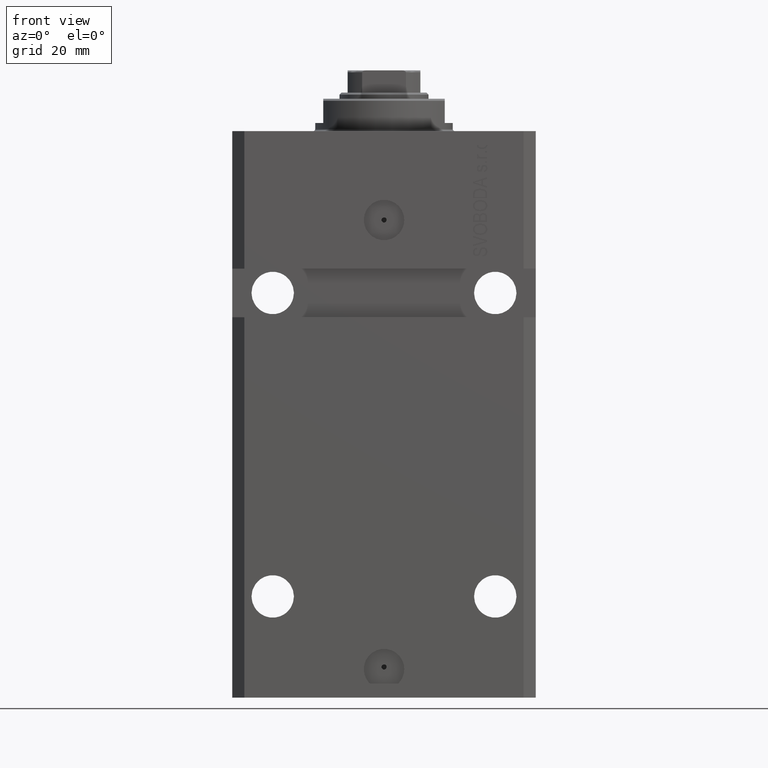
[diagram: clean part render]
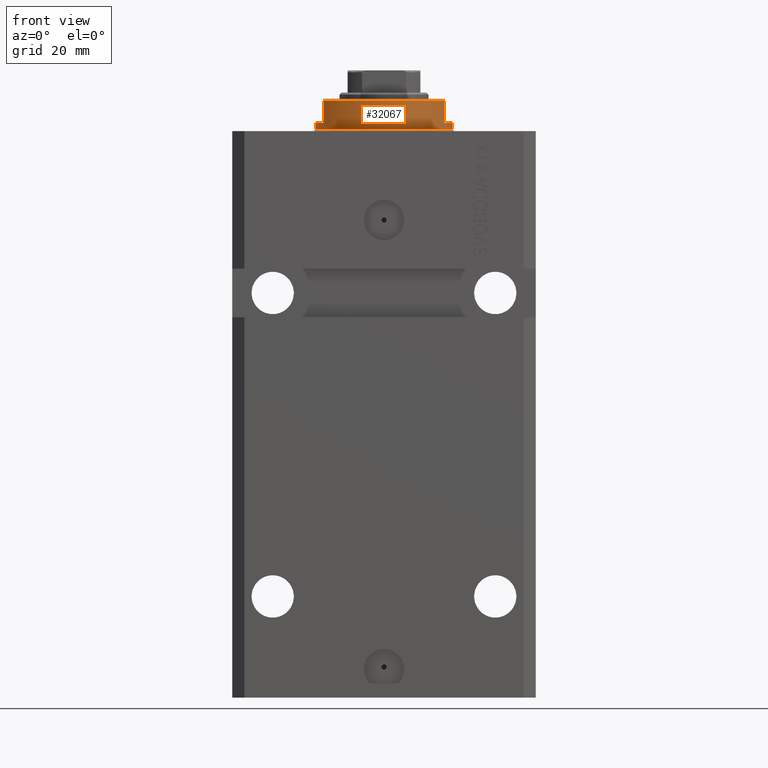
[diagram: same view with one face highlighted and labeled with its STEP entity id]
A machine part, front view. The second image highlights one B-rep face of the part: STEP entity #32067.
In plain terms, the highlighted cylindrical surface (partial cylindrical patch) has radius 17 mm, axis along (0, 0, -1).
Its self-contained STEP definition (entity closure, byte-faithful):
#643 = LINE ( 'NONE', #37655, #19995 ) ;
#671 = DIRECTION ( 'NONE',  ( -1.000000000000000000, 0.000000000000000000, 0.000000000000000000 ) ) ;
#889 = CARTESIAN_POINT ( 'NONE',  ( 0.000000000000000000, 0.000000000000000000, -2.000000000000000000 ) ) ;
#936 = ORIENTED_EDGE ( 'NONE', *, *, #35705, .T. ) ;
#1747 = DIRECTION ( 'NONE',  ( -0.000000000000000000, -0.000000000000000000, 1.000000000000000000 ) ) ;
#2132 = VERTEX_POINT ( 'NONE', #28799 ) ;
#2996 = ORIENTED_EDGE ( 'NONE', *, *, #38268, .T. ) ;
#4745 = CARTESIAN_POINT ( 'NONE',  ( 0.000000000000000000, 0.000000000000000000, -7.500000000000007105 ) ) ;
#5799 = VERTEX_POINT ( 'NONE', #41035 ) ;
#6523 = VECTOR ( 'NONE', #1747, 1000.000000000000000 ) ;
#6725 = DIRECTION ( 'NONE',  ( 0.000000000000000000, 0.000000000000000000, -1.000000000000000000 ) ) ;
#7462 = DIRECTION ( 'NONE',  ( -1.000000000000000000, 0.000000000000000000, 0.000000000000000000 ) ) ;
#7704 = VERTEX_POINT ( 'NONE', #42048 ) ;
#8300 = DIRECTION ( 'NONE',  ( 0.000000000000000000, 0.000000000000000000, -1.000000000000000000 ) ) ;
#8946 = CARTESIAN_POINT ( 'NONE',  ( -17.00000000000000000, 2.081899558550500280E-15, -8.000000000000000000 ) ) ;
#10667 = VERTEX_POINT ( 'NONE', #11235 ) ;
#10848 = CIRCLE ( 'NONE', #18772, 17.00000000000000000 ) ;
#11235 = CARTESIAN_POINT ( 'NONE',  ( 17.00000000000000000, 0.000000000000000000, -2.000000000000000000 ) ) ;
#11745 = DIRECTION ( 'NONE',  ( -1.000000000000000000, 0.000000000000000000, 0.000000000000000000 ) ) ;
#14027 = CARTESIAN_POINT ( 'NONE',  ( 17.00000000000000000, 0.000000000000000000, -0.5000000000000004441 ) ) ;
#14372 = CARTESIAN_POINT ( 'NONE',  ( 17.00000000000000000, 0.000000000000000000, -8.000000000000000000 ) ) ;
#15062 = EDGE_CURVE ( 'NONE', #31395, #2132, #32877, .T. ) ;
#15224 = CARTESIAN_POINT ( 'NONE',  ( -17.00000000000000000, 2.081899558550500280E-15, -2.000000000000000000 ) ) ;
#15792 = EDGE_CURVE ( 'NONE', #7704, #31395, #20939, .T. ) ;
#16012 = AXIS2_PLACEMENT_3D ( 'NONE', #19633, #33855, #43338 ) ;
#16408 = VECTOR ( 'NONE', #37998, 1000.000000000000000 ) ;
#17526 = LINE ( 'NONE', #14372, #26630 ) ;
#18772 = AXIS2_PLACEMENT_3D ( 'NONE', #4745, #21900, #7462 ) ;
#19633 = CARTESIAN_POINT ( 'NONE',  ( 0.000000000000000000, 0.000000000000000000, -0.5000000000000004441 ) ) ;
#19995 = VECTOR ( 'NONE', #6725, 1000.000000000000000 ) ;
#20939 = CIRCLE ( 'NONE', #27417, 17.00000000000000000 ) ;
#21900 = DIRECTION ( 'NONE',  ( 0.000000000000000000, 0.000000000000000000, 1.000000000000000000 ) ) ;
#24072 = EDGE_CURVE ( 'NONE', #5799, #26640, #42044, .T. ) ;
#24505 = DIRECTION ( 'NONE',  ( -0.000000000000000000, -0.000000000000000000, 1.000000000000000000 ) ) ;
#26090 = CIRCLE ( 'NONE', #16012, 17.00000000000000000 ) ;
#26201 = ORIENTED_EDGE ( 'NONE', *, *, #15062, .F. ) ;
#26630 = VECTOR ( 'NONE', #24505, 1000.000000000000000 ) ;
#26640 = VERTEX_POINT ( 'NONE', #29309 ) ;
#27417 = AXIS2_PLACEMENT_3D ( 'NONE', #42429, #35661, #11745 ) ;
#27590 = AXIS2_PLACEMENT_3D ( 'NONE', #889, #8300, #671 ) ;
#27594 = EDGE_CURVE ( 'NONE', #7704, #28040, #643, .T. ) ;
#28040 = VERTEX_POINT ( 'NONE', #39151 ) ;
#28533 = EDGE_LOOP ( 'NONE', ( #26201, #38640, #36092, #936, #36097, #31925, #33364, #2996 ) ) ;
#28799 = CARTESIAN_POINT ( 'NONE',  ( -17.00000000000000000, 2.081899558550500280E-15, -0.5000000000000004441 ) ) ;
#29309 = CARTESIAN_POINT ( 'NONE',  ( 15.00000000000000000, -8.000000000000001776, -7.500000000000007105 ) ) ;
#30170 = DIRECTION ( 'NONE',  ( -0.000000000000000000, -0.000000000000000000, 1.000000000000000000 ) ) ;
#30600 = CARTESIAN_POINT ( 'NONE',  ( 0.000000000000000000, 0.000000000000000000, -8.000000000000000000 ) ) ;
#31395 = VERTEX_POINT ( 'NONE', #15224 ) ;
#31925 = ORIENTED_EDGE ( 'NONE', *, *, #43690, .F. ) ;
#32067 = ADVANCED_FACE ( 'NONE', ( #37162 ), #44380, .T. ) ;
#32269 = EDGE_CURVE ( 'NONE', #10667, #34805, #17526, .T. ) ;
#32877 = LINE ( 'NONE', #8946, #6523 ) ;
#33364 = ORIENTED_EDGE ( 'NONE', *, *, #32269, .T. ) ;
#33855 = DIRECTION ( 'NONE',  ( -0.000000000000000000, -0.000000000000000000, -1.000000000000000000 ) ) ;
#34805 = VERTEX_POINT ( 'NONE', #14027 ) ;
#35661 = DIRECTION ( 'NONE',  ( 0.000000000000000000, 0.000000000000000000, -1.000000000000000000 ) ) ;
#35705 = EDGE_CURVE ( 'NONE', #28040, #26640, #10848, .T. ) ;
#36092 = ORIENTED_EDGE ( 'NONE', *, *, #27594, .T. ) ;
#36097 = ORIENTED_EDGE ( 'NONE', *, *, #24072, .F. ) ;
#36953 = DIRECTION ( 'NONE',  ( 1.000000000000000000, 0.000000000000000000, 0.000000000000000000 ) ) ;
#37162 = FACE_OUTER_BOUND ( 'NONE', #28533, .T. ) ;
#37655 = CARTESIAN_POINT ( 'NONE',  ( -15.00000000000000000, -8.000000000000001776, -8.000000000000000000 ) ) ;
#37998 = DIRECTION ( 'NONE',  ( 0.000000000000000000, 0.000000000000000000, -1.000000000000000000 ) ) ;
#38268 = EDGE_CURVE ( 'NONE', #34805, #2132, #26090, .T. ) ;
#38640 = ORIENTED_EDGE ( 'NONE', *, *, #15792, .F. ) ;
#38834 = AXIS2_PLACEMENT_3D ( 'NONE', #30600, #30170, #36953 ) ;
#39088 = CIRCLE ( 'NONE', #27590, 17.00000000000000000 ) ;
#39151 = CARTESIAN_POINT ( 'NONE',  ( -15.00000000000000000, -8.000000000000001776, -7.500000000000007105 ) ) ;
#41035 = CARTESIAN_POINT ( 'NONE',  ( 14.99999999999999645, -8.000000000000003553, -2.000000000000000000 ) ) ;
#41373 = CARTESIAN_POINT ( 'NONE',  ( 15.00000000000000000, -8.000000000000001776, -8.000000000000000000 ) ) ;
#42044 = LINE ( 'NONE', #41373, #16408 ) ;
#42048 = CARTESIAN_POINT ( 'NONE',  ( -14.99999999999999645, -8.000000000000003553, -2.000000000000000000 ) ) ;
#42429 = CARTESIAN_POINT ( 'NONE',  ( 0.000000000000000000, 0.000000000000000000, -2.000000000000000000 ) ) ;
#43338 = DIRECTION ( 'NONE',  ( 1.000000000000000000, 0.000000000000000000, 0.000000000000000000 ) ) ;
#43690 = EDGE_CURVE ( 'NONE', #10667, #5799, #39088, .T. ) ;
#44380 = CYLINDRICAL_SURFACE ( 'NONE', #38834, 17.00000000000000000 ) ;